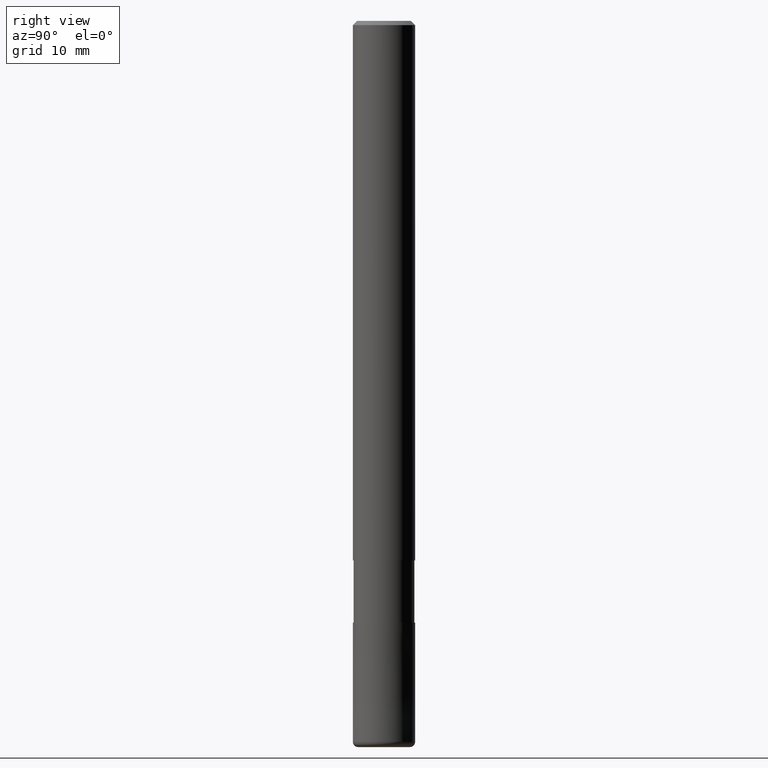
[diagram: clean part render]
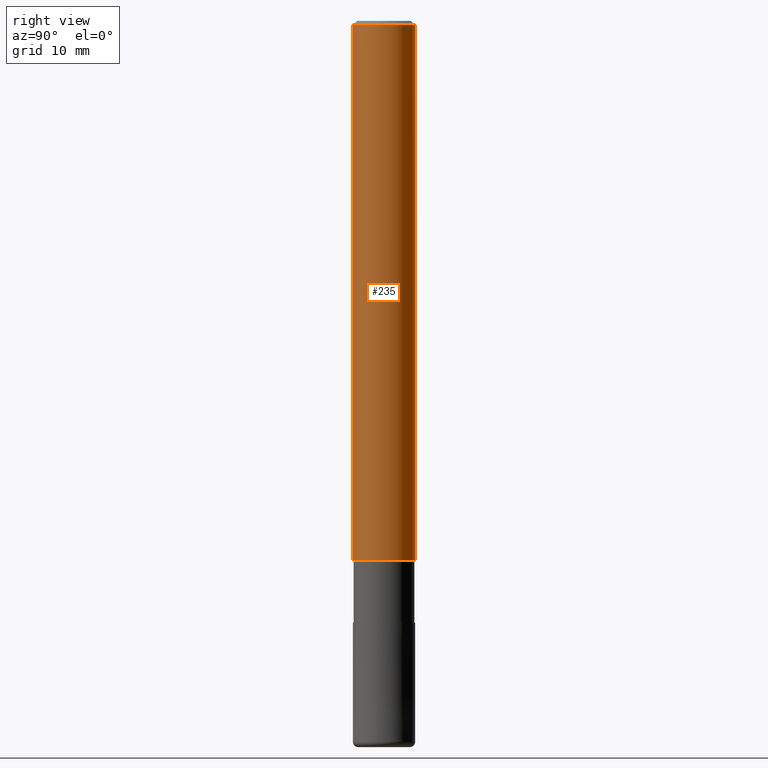
[diagram: same view with one face highlighted and labeled with its STEP entity id]
A machine part, right view. The second image highlights one B-rep face of the part: STEP entity #235.
In plain terms, the highlighted cylindrical surface (edge-blend (fillet) strip) has radius 3 mm, axis along (-0, -0, 1).
Its self-contained STEP definition (entity closure, byte-faithful):
#123=EDGE_CURVE('',#231,#143,#312,.T.);
#131=EDGE_CURVE('',#233,#191,#320,.T.);
#139=EDGE_CURVE('',#231,#191,#330,.T.);
#143=VERTEX_POINT('',#335);
#145=EDGE_CURVE('',#143,#233,#337,.T.);
#191=VERTEX_POINT('',#392);
#231=VERTEX_POINT('',#436);
#233=VERTEX_POINT('',#438);
#235=ADVANCED_FACE('',(#440),#441,.T.);
#312=LINE('',#517,#518);
#320=LINE('',#531,#532);
#330=CIRCLE('',#546,3.0);
#335=CARTESIAN_POINT('',(0.0,3.0,-52.0));
#337=CIRCLE('',#554,3.0);
#392=CARTESIAN_POINT('',(3.67381906146713E-016,-3.0,-0.399999999999999));
#436=CARTESIAN_POINT('',(0.0,3.0,-0.399999999999999));
#438=CARTESIAN_POINT('',(3.67381906146713E-016,-3.0,-52.0));
#440=FACE_OUTER_BOUND('',#682,.T.);
#441=CYLINDRICAL_SURFACE('',#683,3.0);
#517=CARTESIAN_POINT('',(-3.67381906146713E-016,3.0,-26.2));
#518=VECTOR('',#758,1.0);
#531=CARTESIAN_POINT('',(3.67381906146713E-016,-3.0,-26.2));
#532=VECTOR('',#766,1.0);
#546=AXIS2_PLACEMENT_3D('',#779,#780,#781);
#554=AXIS2_PLACEMENT_3D('',#788,#789,#790);
#682=EDGE_LOOP('',(#923,#924,#925,#926));
#683=AXIS2_PLACEMENT_3D('',#927,#928,#929);
#758=DIRECTION('',(0.0,0.0,-1.0));
#766=DIRECTION('',(-0.0,-0.0,1.0));
#779=CARTESIAN_POINT('',(0.0,0.0,-0.399999999999999));
#780=DIRECTION('',(0.0,0.0,-1.0));
#781=DIRECTION('',(0.0,1.0,0.0));
#788=CARTESIAN_POINT('',(0.0,0.0,-52.0));
#789=DIRECTION('',(0.0,0.0,-1.0));
#790=DIRECTION('',(0.0,1.0,0.0));
#923=ORIENTED_EDGE('',*,*,#123,.F.);
#924=ORIENTED_EDGE('',*,*,#139,.T.);
#925=ORIENTED_EDGE('',*,*,#131,.F.);
#926=ORIENTED_EDGE('',*,*,#145,.F.);
#927=CARTESIAN_POINT('',(0.0,0.0,-26.2));
#928=DIRECTION('',(-0.0,-0.0,1.0));
#929=DIRECTION('',(0.0,1.0,0.0));